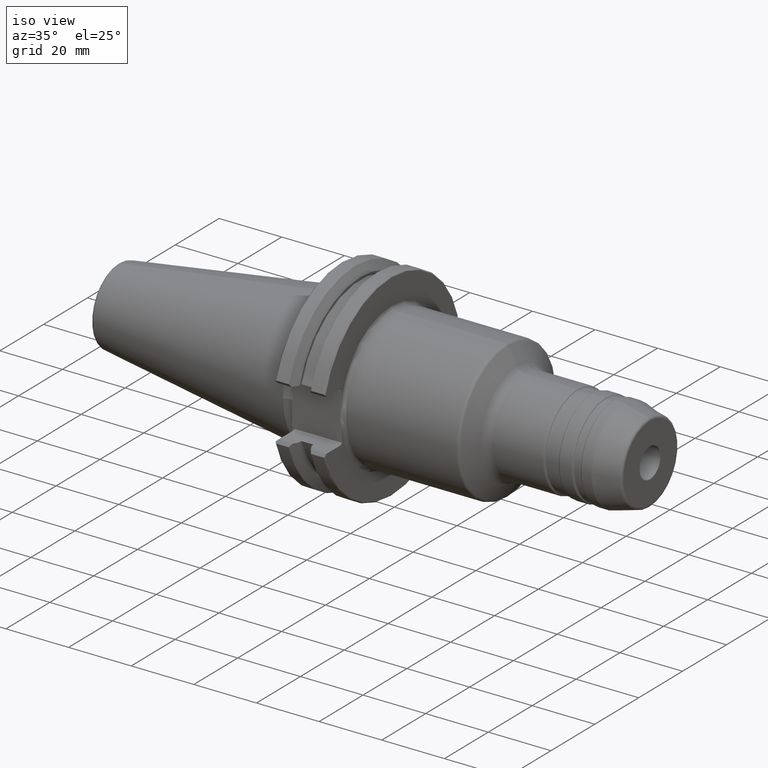
[diagram: clean part render]
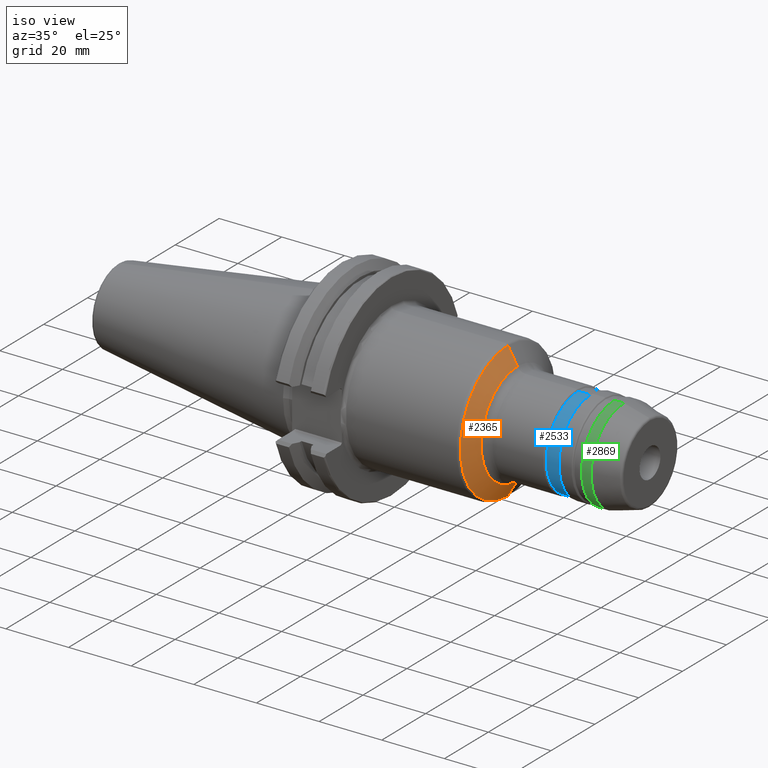
[diagram: same view with three faces highlighted in distinct colors, each labeled with its STEP entity id]
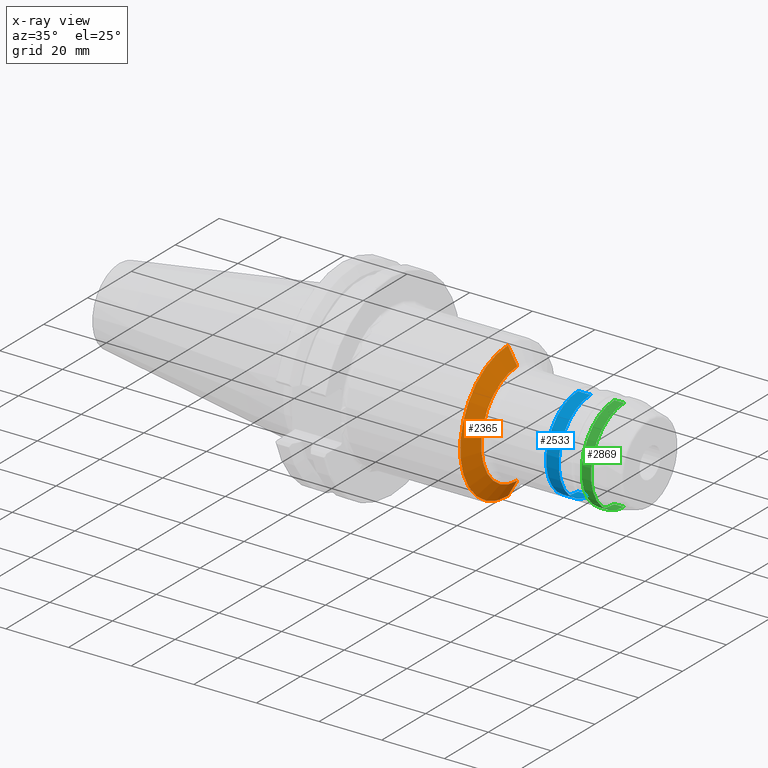
[diagram: x-ray of the same camera — body ghosted, the three highlighted faces saturated]
A machine part, iso view with three faces highlighted in distinct colors.
The next image is the same camera in x-ray (body ghosted, the three faces saturated) — at least one of them is partly hidden behind the body in this view.
Their STEP definitions:

[orange] entity #2365 — the highlighted conical surface has half-angle 60 deg.
#270=CARTESIAN_POINT('',(5.624231943970E1,0.E0,0.E0));
#271=DIRECTION('',(-1.E0,0.E0,0.E0));
#272=DIRECTION('',(0.E0,0.E0,-1.E0));
#273=AXIS2_PLACEMENT_3D('',#270,#271,#272);
#275=DIRECTION('',(-5.E-1,0.E0,-8.660254037844E-1));
#276=VECTOR('',#275,6.033310313032E0);
#277=CARTESIAN_POINT('',(5.925897459622E1,0.E0,-1.65E1));
#278=LINE('',#277,#276);
#279=DIRECTION('',(-5.E-1,0.E0,8.660254037844E-1));
#280=VECTOR('',#279,6.033310313032E0);
#281=CARTESIAN_POINT('',(5.925897459622E1,0.E0,1.65E1));
#282=LINE('',#281,#280);
#283=CARTESIAN_POINT('',(5.925897459622E1,0.E0,0.E0));
#284=DIRECTION('',(-1.E0,0.E0,0.E0));
#285=DIRECTION('',(0.E0,0.E0,-1.E0));
#286=AXIS2_PLACEMENT_3D('',#283,#284,#285);
#1840=CARTESIAN_POINT('',(5.925897459622E1,0.E0,-1.65E1));
#1841=VERTEX_POINT('',#1840);
#1842=CARTESIAN_POINT('',(5.624231943970E1,0.E0,-2.1725E1));
#1843=VERTEX_POINT('',#1842);
#1906=CARTESIAN_POINT('',(5.925897459622E1,0.E0,1.65E1));
#1907=VERTEX_POINT('',#1906);
#1908=CARTESIAN_POINT('',(5.624231943970E1,0.E0,2.1725E1));
#1909=VERTEX_POINT('',#1908);
#2351=CARTESIAN_POINT('',(5.775064701796E1,0.E0,0.E0));
#2352=DIRECTION('',(-1.E0,0.E0,0.E0));
#2353=DIRECTION('',(0.E0,0.E0,-1.E0));
#2354=AXIS2_PLACEMENT_3D('',#2351,#2352,#2353);
#2355=CONICAL_SURFACE('',#2354,1.91125E1,6.E1);
#2357=ORIENTED_EDGE('',*,*,#2356,.T.);
#2358=ORIENTED_EDGE('',*,*,#2346,.T.);
#2360=ORIENTED_EDGE('',*,*,#2359,.F.);
#2362=ORIENTED_EDGE('',*,*,#2361,.F.);
#2363=EDGE_LOOP('',(#2357,#2358,#2360,#2362));
#2364=FACE_OUTER_BOUND('',#2363,.F.);
#2365=ADVANCED_FACE('',(#2364),#2355,.T.);
#274=CIRCLE('',#273,2.1725E1);
#287=CIRCLE('',#286,1.65E1);
#2346=EDGE_CURVE('',#1843,#1909,#274,.T.);
#2356=EDGE_CURVE('',#1841,#1843,#278,.T.);
#2359=EDGE_CURVE('',#1907,#1909,#282,.T.);
#2361=EDGE_CURVE('',#1841,#1907,#287,.T.);

[blue] entity #2533 — the highlighted cylindrical surface (partial cylindrical patch) has radius 14.5 mm, axis along (1, 0, 0).
#384=CARTESIAN_POINT('',(7.8625E1,0.E0,0.E0));
#385=DIRECTION('',(-1.E0,0.E0,0.E0));
#386=DIRECTION('',(0.E0,0.E0,-1.E0));
#387=AXIS2_PLACEMENT_3D('',#384,#385,#386);
#389=DIRECTION('',(-1.E0,0.E0,0.E0));
#390=VECTOR('',#389,4.E0);
#391=CARTESIAN_POINT('',(8.2625E1,0.E0,-1.45E1));
#392=LINE('',#391,#390);
#393=DIRECTION('',(-1.E0,0.E0,0.E0));
#394=VECTOR('',#393,4.E0);
#395=CARTESIAN_POINT('',(8.2625E1,0.E0,1.45E1));
#396=LINE('',#395,#394);
#397=CARTESIAN_POINT('',(8.2625E1,0.E0,0.E0));
#398=DIRECTION('',(-1.E0,0.E0,0.E0));
#399=DIRECTION('',(0.E0,0.E0,-1.E0));
#400=AXIS2_PLACEMENT_3D('',#397,#398,#399);
#1828=CARTESIAN_POINT('',(8.2625E1,0.E0,-1.45E1));
#1829=VERTEX_POINT('',#1828);
#1830=CARTESIAN_POINT('',(7.8625E1,0.E0,-1.45E1));
#1831=VERTEX_POINT('',#1830);
#1894=CARTESIAN_POINT('',(8.2625E1,0.E0,1.45E1));
#1895=VERTEX_POINT('',#1894);
#1896=CARTESIAN_POINT('',(7.8625E1,0.E0,1.45E1));
#1897=VERTEX_POINT('',#1896);
#2519=CARTESIAN_POINT('',(1.49475E1,0.E0,0.E0));
#2520=DIRECTION('',(1.E0,0.E0,0.E0));
#2521=DIRECTION('',(0.E0,0.E0,1.E0));
#2522=AXIS2_PLACEMENT_3D('',#2519,#2520,#2521);
#2523=CYLINDRICAL_SURFACE('',#2522,1.45E1);
#2525=ORIENTED_EDGE('',*,*,#2524,.T.);
#2526=ORIENTED_EDGE('',*,*,#2514,.T.);
#2528=ORIENTED_EDGE('',*,*,#2527,.F.);
#2530=ORIENTED_EDGE('',*,*,#2529,.F.);
#2531=EDGE_LOOP('',(#2525,#2526,#2528,#2530));
#2532=FACE_OUTER_BOUND('',#2531,.F.);
#2533=ADVANCED_FACE('',(#2532),#2523,.T.);
#388=CIRCLE('',#387,1.45E1);
#401=CIRCLE('',#400,1.45E1);
#2514=EDGE_CURVE('',#1831,#1897,#388,.T.);
#2524=EDGE_CURVE('',#1829,#1831,#392,.T.);
#2527=EDGE_CURVE('',#1895,#1897,#396,.T.);
#2529=EDGE_CURVE('',#1829,#1895,#401,.T.);

[green] entity #2869 — the highlighted cylindrical surface (partial cylindrical patch) has radius 15 mm, axis along (1, 0, 0).
#612=CARTESIAN_POINT('',(9.026008529611E1,0.E0,0.E0));
#613=DIRECTION('',(-1.E0,0.E0,0.E0));
#614=DIRECTION('',(0.E0,0.E0,-1.E0));
#615=AXIS2_PLACEMENT_3D('',#612,#613,#614);
#617=DIRECTION('',(-1.E0,0.E0,0.E0));
#618=VECTOR('',#617,3.022750429653E0);
#619=CARTESIAN_POINT('',(9.328283572576E1,0.E0,-1.5E1));
#620=LINE('',#619,#618);
#621=DIRECTION('',(-1.E0,0.E0,0.E0));
#622=VECTOR('',#621,3.022750429653E0);
#623=CARTESIAN_POINT('',(9.328283572576E1,0.E0,1.5E1));
#624=LINE('',#623,#622);
#625=CARTESIAN_POINT('',(9.328283572576E1,0.E0,0.E0));
#626=DIRECTION('',(-1.E0,0.E0,0.E0));
#627=DIRECTION('',(0.E0,0.E0,-1.E0));
#628=AXIS2_PLACEMENT_3D('',#625,#626,#627);
#1804=CARTESIAN_POINT('',(9.328283572576E1,0.E0,-1.5E1));
#1805=VERTEX_POINT('',#1804);
#1806=CARTESIAN_POINT('',(9.026008529611E1,0.E0,-1.5E1));
#1807=VERTEX_POINT('',#1806);
#1870=CARTESIAN_POINT('',(9.328283572576E1,0.E0,1.5E1));
#1871=VERTEX_POINT('',#1870);
#1872=CARTESIAN_POINT('',(9.026008529611E1,0.E0,1.5E1));
#1873=VERTEX_POINT('',#1872);
#2855=CARTESIAN_POINT('',(1.49475E1,0.E0,0.E0));
#2856=DIRECTION('',(1.E0,0.E0,0.E0));
#2857=DIRECTION('',(0.E0,0.E0,1.E0));
#2858=AXIS2_PLACEMENT_3D('',#2855,#2856,#2857);
#2859=CYLINDRICAL_SURFACE('',#2858,1.5E1);
#2861=ORIENTED_EDGE('',*,*,#2860,.T.);
#2862=ORIENTED_EDGE('',*,*,#2850,.T.);
#2864=ORIENTED_EDGE('',*,*,#2863,.F.);
#2866=ORIENTED_EDGE('',*,*,#2865,.F.);
#2867=EDGE_LOOP('',(#2861,#2862,#2864,#2866));
#2868=FACE_OUTER_BOUND('',#2867,.F.);
#2869=ADVANCED_FACE('',(#2868),#2859,.T.);
#616=CIRCLE('',#615,1.5E1);
#629=CIRCLE('',#628,1.5E1);
#2850=EDGE_CURVE('',#1807,#1873,#616,.T.);
#2860=EDGE_CURVE('',#1805,#1807,#620,.T.);
#2863=EDGE_CURVE('',#1871,#1873,#624,.T.);
#2865=EDGE_CURVE('',#1805,#1871,#629,.T.);